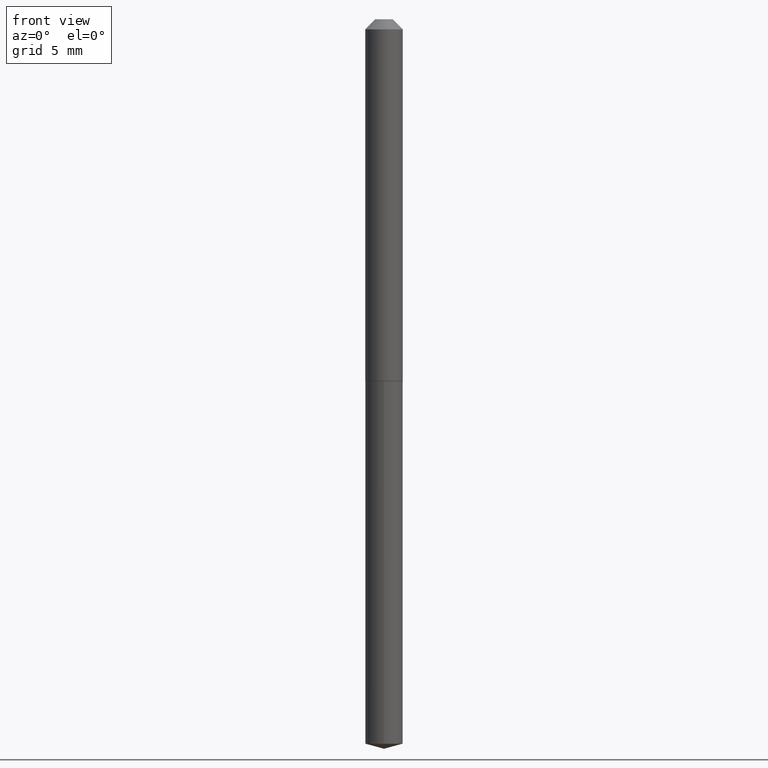
[diagram: clean part render]
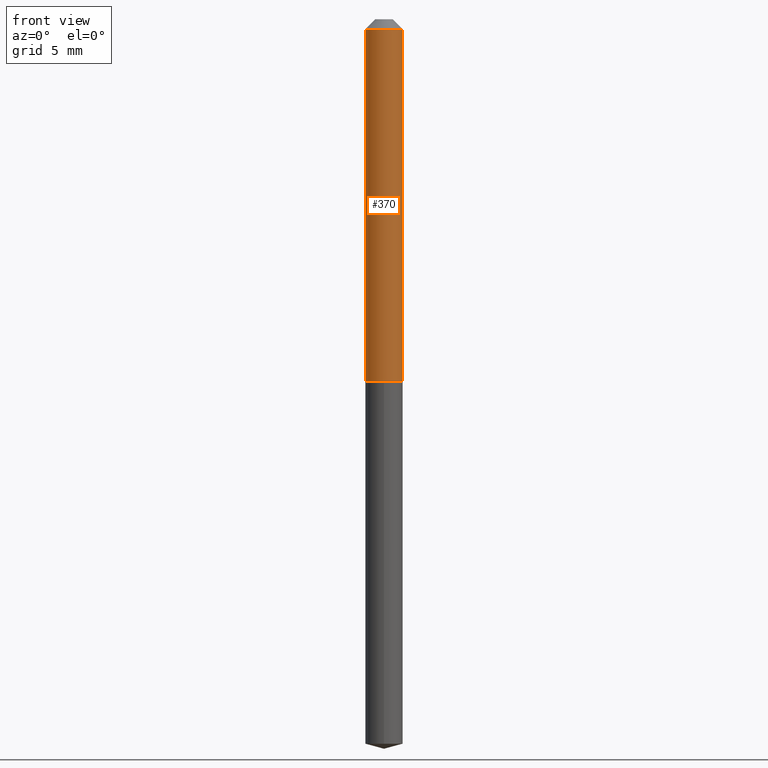
[diagram: same view with one face highlighted and labeled with its STEP entity id]
A machine part, front view. The second image highlights one B-rep face of the part: STEP entity #370.
In plain terms, the highlighted cylindrical surface (edge-blend (fillet) strip) has radius 1.4732 mm, axis along (-0, 0, 1).
Its self-contained STEP definition (entity closure, byte-faithful):
#13 = LINE ( 'NONE', #145, #211 ) ;
#29 = VERTEX_POINT ( 'NONE', #347 ) ;
#40 = EDGE_LOOP ( 'NONE', ( #74, #280, #163, #69 ) ) ;
#47 = EDGE_CURVE ( 'NONE', #196, #29, #13, .T. ) ;
#65 = DIRECTION ( 'NONE',  ( 1.000000000000000000, -6.982962677686266711E-15, 4.876176775795935793E-29 ) ) ;
#69 = ORIENTED_EDGE ( 'NONE', *, *, #182, .F. ) ;
#74 = ORIENTED_EDGE ( 'NONE', *, *, #234, .F. ) ;
#83 = DIRECTION ( 'NONE',  ( -2.445468806185136597E-29, 3.491481338843145583E-15, 1.000000000000000000 ) ) ;
#95 = AXIS2_PLACEMENT_3D ( 'NONE', #361, #214, #65 ) ;
#111 = CARTESIAN_POINT ( 'NONE',  ( 2.727920453299519367E-29, -3.894747433479528290E-15, -1.115499999999999936 ) ) ;
#132 = DIRECTION ( 'NONE',  ( -2.445468806185136597E-29, 3.491481338843145583E-15, 1.000000000000000000 ) ) ;
#145 = CARTESIAN_POINT ( 'NONE',  ( 0.05800000000000007233, -4.050118353058039642E-16, 2.828182529961646347E-30 ) ) ;
#157 = AXIS2_PLACEMENT_3D ( 'NONE', #242, #132, #239 ) ;
#163 = ORIENTED_EDGE ( 'NONE', *, *, #47, .T. ) ;
#172 = EDGE_CURVE ( 'NONE', #288, #196, #317, .T. ) ;
#175 = VECTOR ( 'NONE', #246, 39.37007874015748143 ) ;
#182 = EDGE_CURVE ( 'NONE', #351, #29, #219, .T. ) ;
#196 = VERTEX_POINT ( 'NONE', #335 ) ;
#211 = VECTOR ( 'NONE', #263, 39.37007874015748143 ) ;
#214 = DIRECTION ( 'NONE',  ( -2.445468806185136597E-29, 3.491481338843145583E-15, 1.000000000000000000 ) ) ;
#219 = CIRCLE ( 'NONE', #157, 0.05800000000000000294 ) ;
#234 = EDGE_CURVE ( 'NONE', #288, #351, #282, .T. ) ;
#239 = DIRECTION ( 'NONE',  ( 1.000000000000000000, -6.982962677686266711E-15, 0.000000000000000000 ) ) ;
#242 = CARTESIAN_POINT ( 'NONE',  ( 7.642090019328602662E-31, -1.091087918388490267E-16, -0.03125000000000020817 ) ) ;
#245 = FACE_OUTER_BOUND ( 'NONE', #40, .T. ) ;
#246 = DIRECTION ( 'NONE',  ( -2.445468806185136877E-29, 3.491481338843145188E-15, 1.000000000000000000 ) ) ;
#263 = DIRECTION ( 'NONE',  ( -2.445468806185136877E-29, 3.491481338843145188E-15, 1.000000000000000000 ) ) ;
#272 = CARTESIAN_POINT ( 'NONE',  ( -0.05800000000000014172, -3.482632646738669816E-15, -1.115499999999999936 ) ) ;
#278 = AXIS2_PLACEMENT_3D ( 'NONE', #111, #83, #384 ) ;
#280 = ORIENTED_EDGE ( 'NONE', *, *, #172, .T. ) ;
#282 = LINE ( 'NONE', #389, #175 ) ;
#287 = CARTESIAN_POINT ( 'NONE',  ( -0.05800000000000000294, -1.589813325918329433E-15, -0.03125000000000020817 ) ) ;
#288 = VERTEX_POINT ( 'NONE', #272 ) ;
#305 = CYLINDRICAL_SURFACE ( 'NONE', #95, 0.05800000000000007233 ) ;
#317 = CIRCLE ( 'NONE', #278, 0.05800000000000014172 ) ;
#335 = CARTESIAN_POINT ( 'NONE',  ( 0.05800000000000014172, -4.299759268785332895E-15, -1.115499999999999936 ) ) ;
#347 = CARTESIAN_POINT ( 'NONE',  ( 0.05800000000000000294, -5.141206271446525225E-16, -0.03125000000000020817 ) ) ;
#351 = VERTEX_POINT ( 'NONE', #287 ) ;
#361 = CARTESIAN_POINT ( 'NONE',  ( 0.000000000000000000, 0.000000000000000000, 0.000000000000000000 ) ) ;
#370 = ADVANCED_FACE ( 'NONE', ( #245 ), #305, .T. ) ;
#384 = DIRECTION ( 'NONE',  ( 1.000000000000000000, -6.982962677686265922E-15, 0.000000000000000000 ) ) ;
#389 = CARTESIAN_POINT ( 'NONE',  ( -0.05800000000000007233, 4.121147867408586217E-16, -2.852982352347848756E-30 ) ) ;